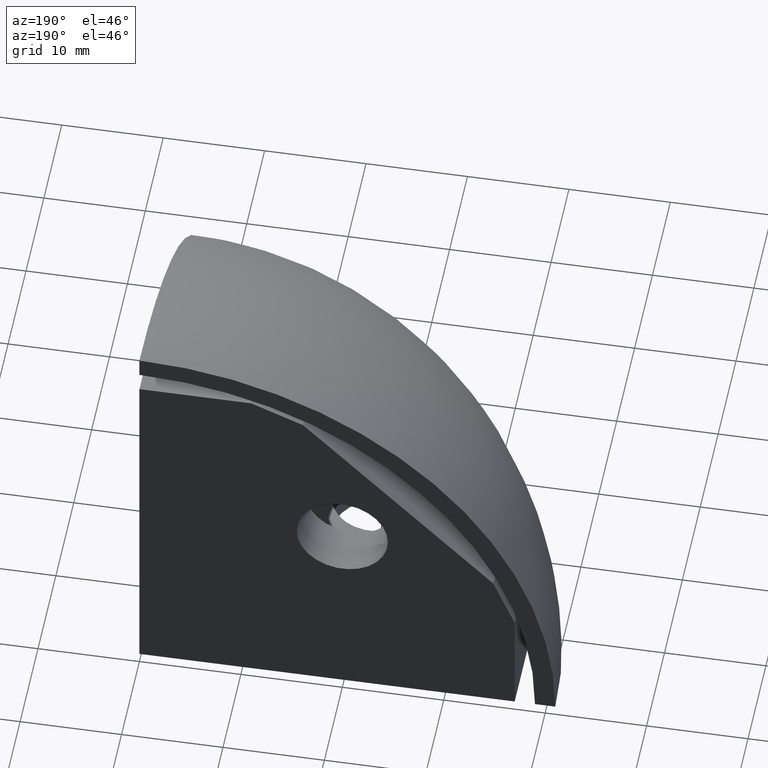
[diagram: clean part render]
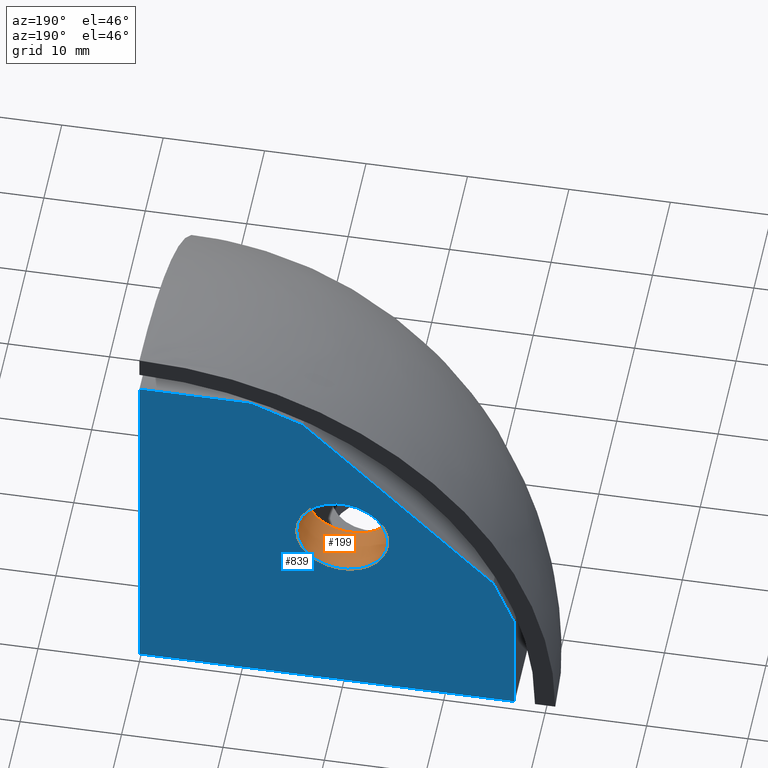
[diagram: same view with the hole feature highlighted: cylindrical wall and planar end face, labeled with their STEP entity ids]
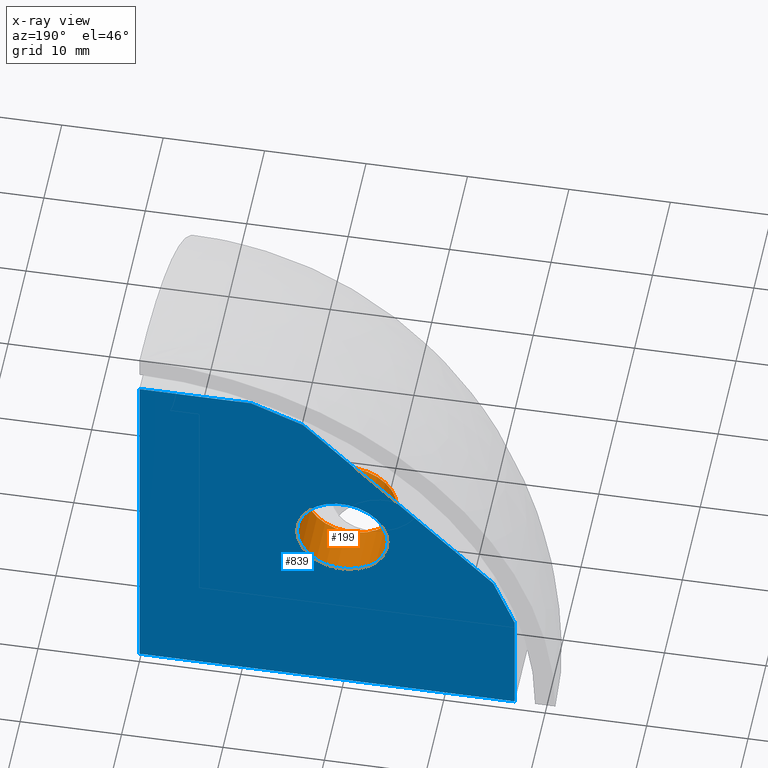
[diagram: x-ray of the same camera — body ghosted, the hole faces saturated]
A machine part, auxiliary view. The highlighted faces form one hole feature of diameter 9 mm: the cylindrical wall (entity #199, orange) and its adjacent planar end face (entity #839, blue) — they share a circular edge in the B-rep.
The next image is the same camera in x-ray (body ghosted, the hole faces saturated) — the bore reads through the body.
Wall:
#149=CARTESIAN_POINT('',(-20.0,0.0,20.0));
#150=DIRECTION('',(0.0,1.0,0.0));
#151=DIRECTION('',(-1.0,0.0,0.0));
#152=AXIS2_PLACEMENT_3D('',#149,#150,#151);
#153=CYLINDRICAL_SURFACE('',#152,4.499999999999996);
#154=CARTESIAN_POINT('',(-24.499999999999993,0.0,20.0));
#155=VERTEX_POINT('',#154);
#156=CARTESIAN_POINT('',(-24.499999999999993,-5.0,20.0));
#157=VERTEX_POINT('',#156);
#158=CARTESIAN_POINT('',(-24.499999999999993,0.0,20.0));
#159=DIRECTION('',(0.0,-1.0,0.0));
#160=VECTOR('',#159,5.0);
#161=LINE('',#158,#160);
#162=EDGE_CURVE('',#155,#157,#161,.T.);
#163=ORIENTED_EDGE('',*,*,#162,.T.);
#164=CARTESIAN_POINT('',(-15.500000000000004,-5.0,20.0));
#165=VERTEX_POINT('',#164);
#166=CARTESIAN_POINT('',(-20.0,-5.0,20.0));
#167=DIRECTION('',(0.0,1.0,0.0));
#168=DIRECTION('',(-1.0,0.0,0.0));
#169=AXIS2_PLACEMENT_3D('',#166,#167,#168);
#170=CIRCLE('',#169,4.499999999999996);
#171=EDGE_CURVE('',#165,#157,#170,.T.);
#172=ORIENTED_EDGE('',*,*,#171,.F.);
#173=CARTESIAN_POINT('',(-20.0,-5.0,20.0));
#174=DIRECTION('',(0.0,1.0,0.0));
#175=DIRECTION('',(-1.0,0.0,0.0));
#176=AXIS2_PLACEMENT_3D('',#173,#174,#175);
#177=CIRCLE('',#176,4.499999999999996);
#178=EDGE_CURVE('',#157,#165,#177,.T.);
#179=ORIENTED_EDGE('',*,*,#178,.F.);
#180=ORIENTED_EDGE('',*,*,#162,.F.);
#181=CARTESIAN_POINT('',(-15.500000000000004,0.0,20.0));
#182=VERTEX_POINT('',#181);
#183=CARTESIAN_POINT('',(-20.0,0.0,20.0));
#184=DIRECTION('',(0.0,1.0,0.0));
#185=DIRECTION('',(-1.0,0.0,0.0));
#186=AXIS2_PLACEMENT_3D('',#183,#184,#185);
#187=CIRCLE('',#186,4.499999999999996);
#188=EDGE_CURVE('',#155,#182,#187,.T.);
#189=ORIENTED_EDGE('',*,*,#188,.T.);
#190=CARTESIAN_POINT('',(-20.0,0.0,20.0));
#191=DIRECTION('',(0.0,1.0,0.0));
#192=DIRECTION('',(-1.0,0.0,0.0));
#193=AXIS2_PLACEMENT_3D('',#190,#191,#192);
#194=CIRCLE('',#193,4.499999999999996);
#195=EDGE_CURVE('',#182,#155,#194,.T.);
#196=ORIENTED_EDGE('',*,*,#195,.T.);
#197=EDGE_LOOP('',(#163,#172,#179,#180,#189,#196));
#198=FACE_OUTER_BOUND('',#197,.T.);
#199=ADVANCED_FACE('',(#198),#153,.F.);
End face:
#154=CARTESIAN_POINT('',(-24.499999999999993,0.0,20.0));
#155=VERTEX_POINT('',#154);
#181=CARTESIAN_POINT('',(-15.500000000000004,0.0,20.0));
#182=VERTEX_POINT('',#181);
#183=CARTESIAN_POINT('',(-20.0,0.0,20.0));
#184=DIRECTION('',(0.0,1.0,0.0));
#185=DIRECTION('',(-1.0,0.0,0.0));
#186=AXIS2_PLACEMENT_3D('',#183,#184,#185);
#187=CIRCLE('',#186,4.499999999999996);
#188=EDGE_CURVE('',#155,#182,#187,.T.);
#190=CARTESIAN_POINT('',(-20.0,0.0,20.0));
#191=DIRECTION('',(0.0,1.0,0.0));
#192=DIRECTION('',(-1.0,0.0,0.0));
#193=AXIS2_PLACEMENT_3D('',#190,#191,#192);
#194=CIRCLE('',#193,4.499999999999996);
#195=EDGE_CURVE('',#182,#155,#194,.T.);
#309=CARTESIAN_POINT('',(0.0,0.0,0.0));
#310=VERTEX_POINT('',#309);
#317=CARTESIAN_POINT('',(0.0,0.0,37.0));
#318=VERTEX_POINT('',#317);
#319=CARTESIAN_POINT('',(0.0,0.0,0.0));
#320=DIRECTION('',(0.0,0.0,1.0));
#321=VECTOR('',#320,37.0);
#322=LINE('',#319,#321);
#323=EDGE_CURVE('',#310,#318,#322,.T.);
#642=CARTESIAN_POINT('',(-37.000000000000007,0.0,0.0));
#643=VERTEX_POINT('',#642);
#650=CARTESIAN_POINT('',(0.0,0.0,0.0));
#651=DIRECTION('',(-1.0,0.0,0.0));
#652=VECTOR('',#651,37.000000000000007);
#653=LINE('',#650,#652);
#654=EDGE_CURVE('',#310,#643,#653,.T.);
#769=CARTESIAN_POINT('',(-34.878679656440362,0.0,16.121320343559642));
#770=VERTEX_POINT('',#769);
#771=CARTESIAN_POINT('',(-37.000000000000007,0.0,11.0));
#772=VERTEX_POINT('',#771);
#773=CARTESIAN_POINT('',(-34.878679656440362,0.0,16.121320343559645));
#774=DIRECTION('',(-0.382683432365090,0.0,-0.923879532511287));
#775=VECTOR('',#774,5.543277195067724);
#776=LINE('',#773,#775);
#777=EDGE_CURVE('',#770,#772,#776,.T.);
#797=CARTESIAN_POINT('',(0.0,0.0,0.0));
#798=DIRECTION('',(0.0,1.0,0.0));
#799=DIRECTION('',(-1.0,0.0,0.0));
#800=AXIS2_PLACEMENT_3D('',#797,#798,#799);
#801=PLANE('',#800);
#802=ORIENTED_EDGE('',*,*,#654,.T.);
#803=CARTESIAN_POINT('',(-37.000000000000007,0.0,0.0));
#804=DIRECTION('',(0.0,0.0,1.0));
#805=VECTOR('',#804,11.0);
#806=LINE('',#803,#805);
#807=EDGE_CURVE('',#643,#772,#806,.T.);
#808=ORIENTED_EDGE('',*,*,#807,.T.);
#809=ORIENTED_EDGE('',*,*,#777,.F.);
#810=CARTESIAN_POINT('',(-16.121320343559653,7.105427E-015,34.878679656440355));
#811=VERTEX_POINT('',#810);
#812=CARTESIAN_POINT('',(-16.121320343559653,0.0,34.878679656440355));
#813=DIRECTION('',(-0.707106781186548,0.0,-0.707106781186547));
#814=VECTOR('',#813,26.526911934581186);
#815=LINE('',#812,#814);
#816=EDGE_CURVE('',#811,#770,#815,.T.);
#817=ORIENTED_EDGE('',*,*,#816,.F.);
#818=CARTESIAN_POINT('',(-11.000000000000007,7.105427E-015,37.0));
#819=VERTEX_POINT('',#818);
#820=CARTESIAN_POINT('',(-11.000000000000007,0.0,37.0));
#821=DIRECTION('',(-0.923879532511287,0.0,-0.382683432365090));
#822=VECTOR('',#821,5.543277195067724);
#823=LINE('',#820,#822);
#824=EDGE_CURVE('',#819,#811,#823,.T.);
#825=ORIENTED_EDGE('',*,*,#824,.F.);
#826=CARTESIAN_POINT('',(0.0,0.0,37.0));
#827=DIRECTION('',(-1.0,0.0,0.0));
#828=VECTOR('',#827,11.000000000000007);
#829=LINE('',#826,#828);
#830=EDGE_CURVE('',#318,#819,#829,.T.);
#831=ORIENTED_EDGE('',*,*,#830,.F.);
#832=ORIENTED_EDGE('',*,*,#323,.F.);
#833=EDGE_LOOP('',(#802,#808,#809,#817,#825,#831,#832));
#834=FACE_OUTER_BOUND('',#833,.T.);
#835=ORIENTED_EDGE('',*,*,#195,.F.);
#836=ORIENTED_EDGE('',*,*,#188,.F.);
#837=EDGE_LOOP('',(#835,#836));
#838=FACE_BOUND('',#837,.T.);
#839=ADVANCED_FACE('',(#834,#838),#801,.T.);